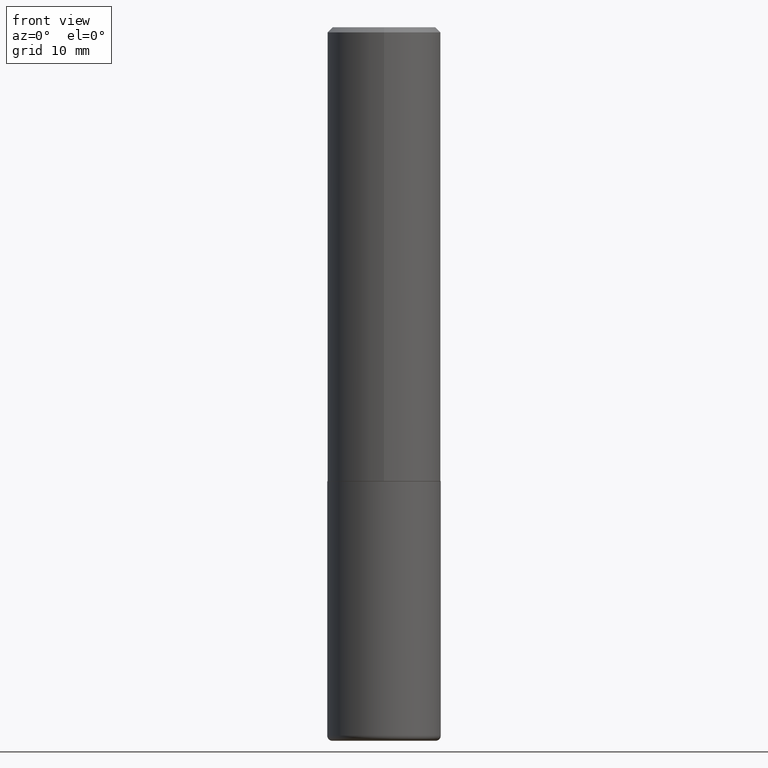
[diagram: clean part render]
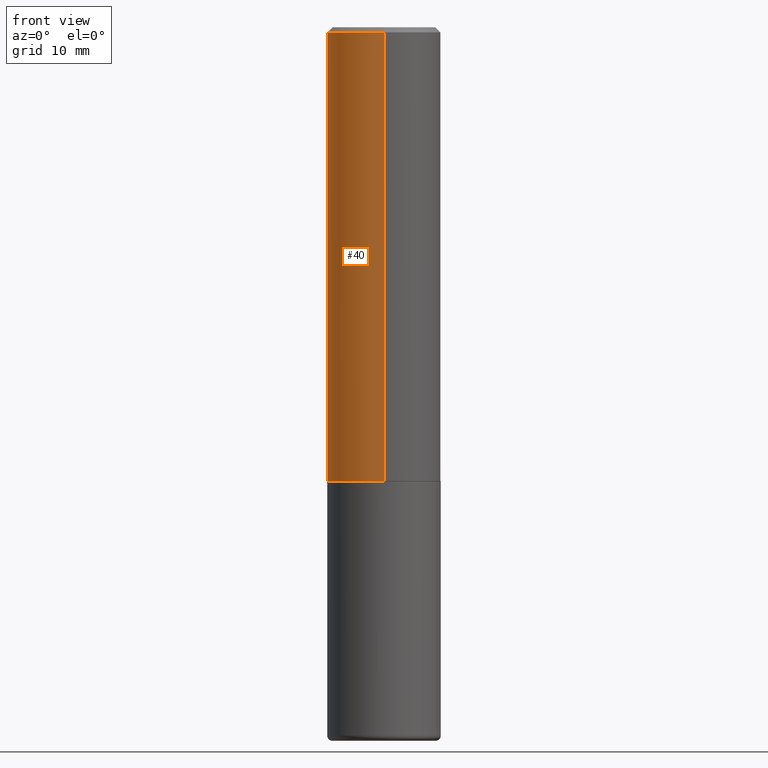
[diagram: same view with one face highlighted and labeled with its STEP entity id]
A machine part, front view. The second image highlights one B-rep face of the part: STEP entity #40.
In plain terms, the highlighted cylindrical surface (partial cylindrical patch) has radius 5.5563 mm, axis along (-0, 0, 1).
Its self-contained STEP definition (entity closure, byte-faithful):
#40 = ADVANCED_FACE ( 'NONE', ( #357 ), #230, .T. ) ;
#48 = EDGE_CURVE ( 'NONE', #153, #401, #332, .T. ) ;
#61 = CARTESIAN_POINT ( 'NONE',  ( -1.500733937012521740E-15, -0.2187500000000000555, -0.01999999999999928571 ) ) ;
#68 = EDGE_CURVE ( 'NONE', #163, #396, #93, .T. ) ;
#69 = DIRECTION ( 'NONE',  ( -6.982962677686265922E-15, -1.000000000000000000, 3.492588014715522738E-15 ) ) ;
#77 = AXIS2_PLACEMENT_3D ( 'NONE', #169, #288, #69 ) ;
#93 = CIRCLE ( 'NONE', #254, 0.2187500000000000000 ) ;
#124 = DIRECTION ( 'NONE',  ( -2.444696018553826107E-29, 3.492588014715522738E-15, 1.000000000000000000 ) ) ;
#153 = VERTEX_POINT ( 'NONE', #296 ) ;
#160 = ORIENTED_EDGE ( 'NONE', *, *, #363, .F. ) ;
#163 = VERTEX_POINT ( 'NONE', #212 ) ;
#169 = CARTESIAN_POINT ( 'NONE',  ( 0.000000000000000000, 0.000000000000000000, 0.000000000000000000 ) ) ;
#172 = CARTESIAN_POINT ( 'NONE',  ( 4.889392037107664756E-31, -6.985176029431062485E-17, -0.02000000000000005246 ) ) ;
#184 = VECTOR ( 'NONE', #124, 39.37007874015748143 ) ;
#185 = EDGE_LOOP ( 'NONE', ( #160, #197, #341, #194 ) ) ;
#194 = ORIENTED_EDGE ( 'NONE', *, *, #68, .F. ) ;
#197 = ORIENTED_EDGE ( 'NONE', *, *, #48, .T. ) ;
#199 = DIRECTION ( 'NONE',  ( -2.444696018553826107E-29, 3.492588014715522738E-15, 1.000000000000000000 ) ) ;
#211 = DIRECTION ( 'NONE',  ( -6.982962677686265133E-15, -1.000000000000000000, 3.492862791899308071E-15 ) ) ;
#212 = CARTESIAN_POINT ( 'NONE',  ( 1.527523085743871040E-15, 0.2187499999999999167, -0.02000000000000081574 ) ) ;
#230 = CYLINDRICAL_SURFACE ( 'NONE', #77, 0.2187500000000000833 ) ;
#254 = AXIS2_PLACEMENT_3D ( 'NONE', #172, #299, #211 ) ;
#259 = CARTESIAN_POINT ( 'NONE',  ( 1.554312234475219551E-15, 0.2187500000000000833, -7.640036282190209070E-16 ) ) ;
#280 = DIRECTION ( 'NONE',  ( -2.444696018553826107E-29, 3.492588014715522738E-15, 1.000000000000000000 ) ) ;
#288 = DIRECTION ( 'NONE',  ( -2.444696018553826107E-29, 3.492588014715522738E-15, 1.000000000000000000 ) ) ;
#290 = CARTESIAN_POINT ( 'NONE',  ( -1.527523085743829231E-15, -0.2187500000000063005, -1.748999999999999000 ) ) ;
#296 = CARTESIAN_POINT ( 'NONE',  ( 1.554312234475241442E-15, 0.2187499999999940603, -1.749000000000000554 ) ) ;
#299 = DIRECTION ( 'NONE',  ( -2.444696018553826107E-29, 3.492588014715522738E-15, 1.000000000000000000 ) ) ;
#310 = AXIS2_PLACEMENT_3D ( 'NONE', #360, #199, #322 ) ;
#315 = LINE ( 'NONE', #259, #346 ) ;
#322 = DIRECTION ( 'NONE',  ( -6.982962677686265922E-15, -1.000000000000000000, 3.746534391310986401E-15 ) ) ;
#328 = EDGE_CURVE ( 'NONE', #401, #396, #347, .T. ) ;
#332 = CIRCLE ( 'NONE', #310, 0.2187500000000001943 ) ;
#341 = ORIENTED_EDGE ( 'NONE', *, *, #328, .T. ) ;
#346 = VECTOR ( 'NONE', #280, 39.37007874015748143 ) ;
#347 = LINE ( 'NONE', #418, #184 ) ;
#357 = FACE_OUTER_BOUND ( 'NONE', #185, .T. ) ;
#360 = CARTESIAN_POINT ( 'NONE',  ( 4.275773336450641228E-29, -6.108536437737448619E-15, -1.748999999999999888 ) ) ;
#363 = EDGE_CURVE ( 'NONE', #153, #163, #315, .T. ) ;
#396 = VERTEX_POINT ( 'NONE', #61 ) ;
#401 = VERTEX_POINT ( 'NONE', #290 ) ;
#418 = CARTESIAN_POINT ( 'NONE',  ( -1.527523085743871237E-15, -0.2187500000000000833, 7.640036282190209070E-16 ) ) ;